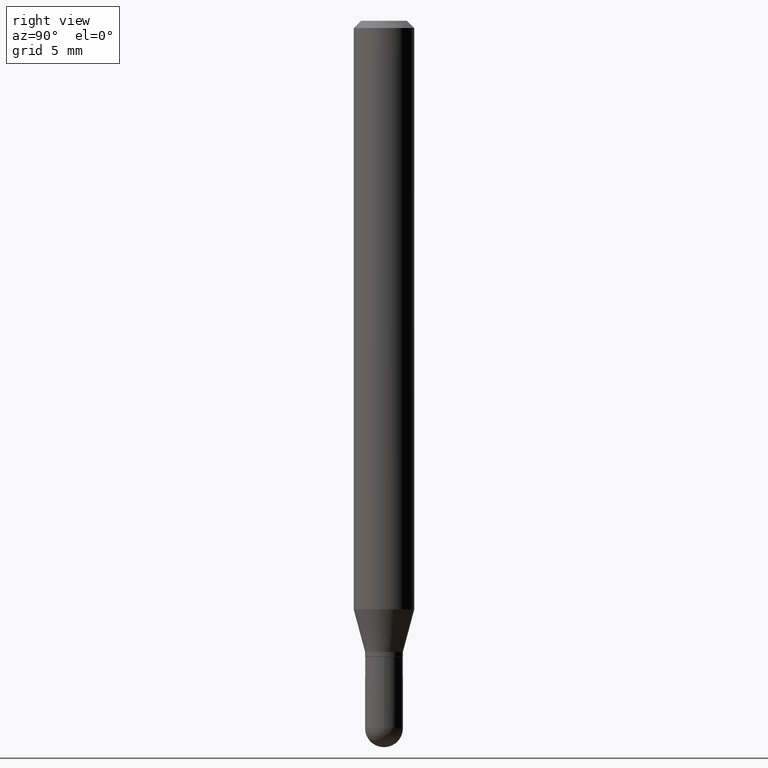
[diagram: clean part render]
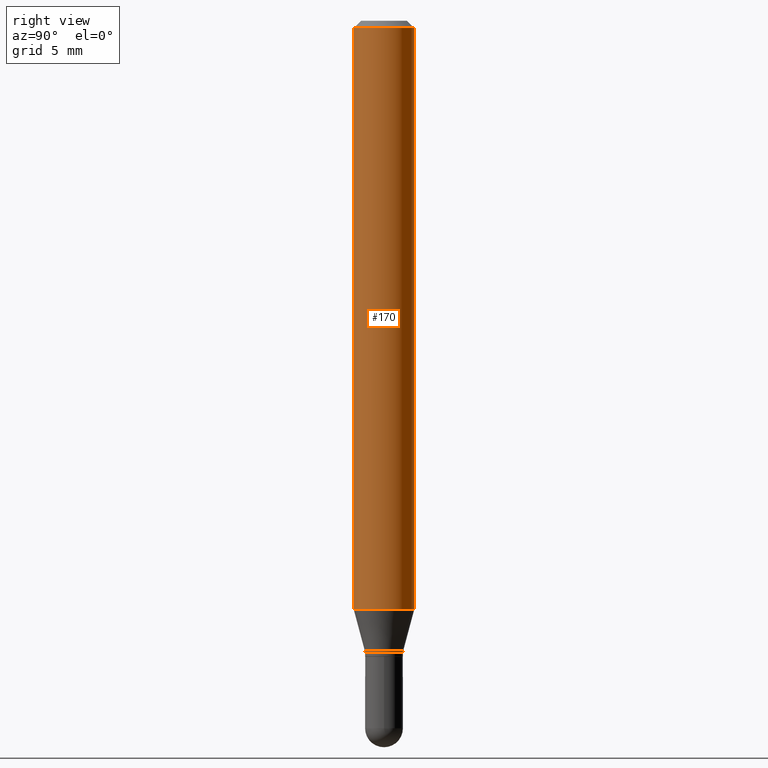
[diagram: same view with one face highlighted and labeled with its STEP entity id]
A machine part, right view. The second image highlights one B-rep face of the part: STEP entity #170.
In plain terms, the highlighted cylindrical surface (edge-blend (fillet) strip) has radius 1.5875 mm, axis along (-0, 0, 1).
Its self-contained STEP definition (entity closure, byte-faithful):
#2 = VERTEX_POINT ( 'NONE', #47 ) ;
#6 = CIRCLE ( 'NONE', #299, 0.06250000000000001388 ) ;
#10 = CARTESIAN_POINT ( 'NONE',  ( -4.364351673553621364E-16, -0.06250000000000427436, -1.215483408562511025 ) ) ;
#13 = DIRECTION ( 'NONE',  ( -2.445715240831873182E-29, 3.491128430402830124E-15, 1.000000000000000000 ) ) ;
#16 = DIRECTION ( 'NONE',  ( -2.445715240831873182E-29, 3.491128430402830124E-15, 1.000000000000000000 ) ) ;
#47 = CARTESIAN_POINT ( 'NONE',  ( 4.440892098500924943E-16, 0.06249999999999995837, -0.01500000000000057711 ) ) ;
#63 = VECTOR ( 'NONE', #511, 39.37007874015748143 ) ;
#79 = AXIS2_PLACEMENT_3D ( 'NONE', #366, #13, #177 ) ;
#114 = VERTEX_POINT ( 'NONE', #410 ) ;
#137 = VERTEX_POINT ( 'NONE', #10 ) ;
#169 = AXIS2_PLACEMENT_3D ( 'NONE', #445, #16, #364 ) ;
#170 = ADVANCED_FACE ( 'NONE', ( #414 ), #295, .T. ) ;
#175 = EDGE_CURVE ( 'NONE', #137, #114, #296, .T. ) ;
#177 = DIRECTION ( 'NONE',  ( -6.982962677686265922E-15, -1.000000000000000000, 4.370956789862821150E-15 ) ) ;
#199 = DIRECTION ( 'NONE',  ( -2.445715240831873463E-29, 3.491128430402830124E-15, 1.000000000000000000 ) ) ;
#238 = EDGE_LOOP ( 'NONE', ( #437, #397, #471, #321 ) ) ;
#244 = VERTEX_POINT ( 'NONE', #339 ) ;
#250 = DIRECTION ( 'NONE',  ( -6.982962677686265922E-15, -1.000000000000000000, 3.483106191921934765E-15 ) ) ;
#253 = LINE ( 'NONE', #350, #63 ) ;
#295 = CYLINDRICAL_SURFACE ( 'NONE', #169, 0.06250000000000001388 ) ;
#296 = CIRCLE ( 'NONE', #79, 0.06250000000000000000 ) ;
#299 = AXIS2_PLACEMENT_3D ( 'NONE', #428, #391, #250 ) ;
#321 = ORIENTED_EDGE ( 'NONE', *, *, #459, .F. ) ;
#339 = CARTESIAN_POINT ( 'NONE',  ( -4.364351673553913736E-16, -0.06250000000000006939, -0.01500000000000014169 ) ) ;
#350 = CARTESIAN_POINT ( 'NONE',  ( 4.440892098500626162E-16, 0.06250000000000001388, -2.181955269001769074E-16 ) ) ;
#357 = LINE ( 'NONE', #505, #411 ) ;
#364 = DIRECTION ( 'NONE',  ( -6.982962677686265133E-15, -1.000000000000000000, 3.491128430402829729E-15 ) ) ;
#366 = CARTESIAN_POINT ( 'NONE',  ( 2.972726297299607962E-29, -4.243408684315521466E-15, -1.215483408562511247 ) ) ;
#391 = DIRECTION ( 'NONE',  ( -2.445715240831873182E-29, 3.491128430402830124E-15, 1.000000000000000000 ) ) ;
#397 = ORIENTED_EDGE ( 'NONE', *, *, #472, .T. ) ;
#398 = EDGE_CURVE ( 'NONE', #244, #2, #6, .T. ) ;
#410 = CARTESIAN_POINT ( 'NONE',  ( 4.440892098500919026E-16, 0.06249999999999571176, -1.215483408562511469 ) ) ;
#411 = VECTOR ( 'NONE', #199, 39.37007874015748143 ) ;
#414 = FACE_OUTER_BOUND ( 'NONE', #238, .T. ) ;
#428 = CARTESIAN_POINT ( 'NONE',  ( 3.668572861247897004E-31, -5.236692645604369505E-17, -0.01500000000000035853 ) ) ;
#437 = ORIENTED_EDGE ( 'NONE', *, *, #175, .T. ) ;
#445 = CARTESIAN_POINT ( 'NONE',  ( 0.000000000000000000, 0.000000000000000000, 0.000000000000000000 ) ) ;
#459 = EDGE_CURVE ( 'NONE', #137, #244, #357, .T. ) ;
#471 = ORIENTED_EDGE ( 'NONE', *, *, #398, .F. ) ;
#472 = EDGE_CURVE ( 'NONE', #114, #2, #253, .T. ) ;
#505 = CARTESIAN_POINT ( 'NONE',  ( -4.364351673553916694E-16, -0.06250000000000001388, 2.181955269001769074E-16 ) ) ;
#511 = DIRECTION ( 'NONE',  ( -2.445715240831873463E-29, 3.491128430402830124E-15, 1.000000000000000000 ) ) ;